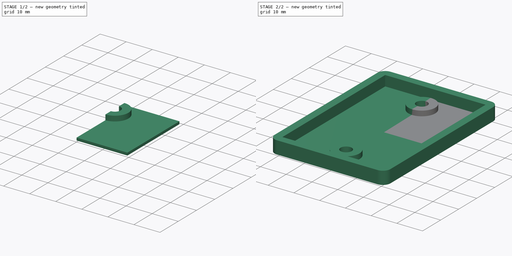
[diagram: build sequence overview — one tinted view per stage of 2, left to right]
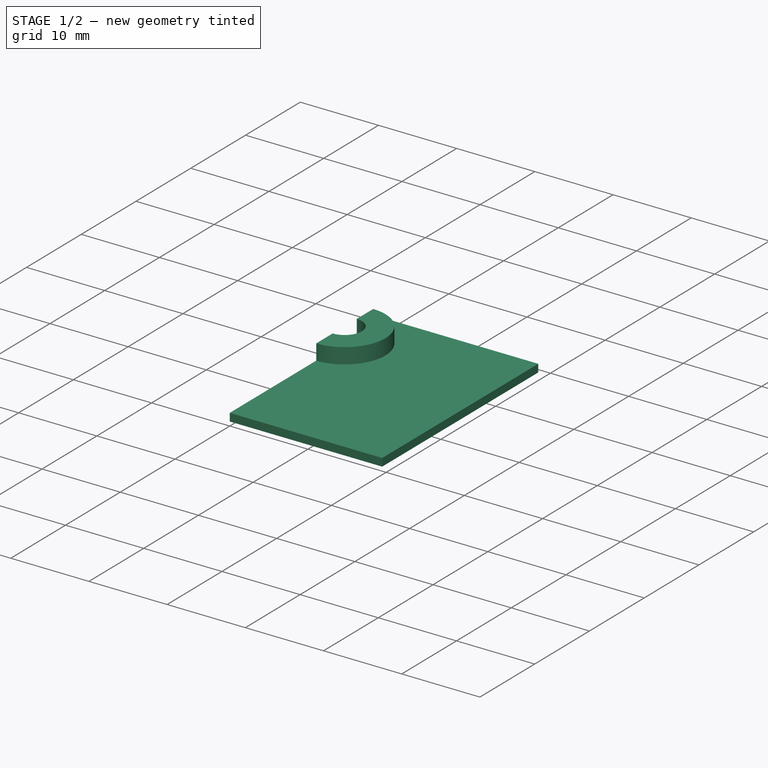
[diagram: stage 1 of 2 — iso view after this stage's code; geometry added in this stage tinted green]
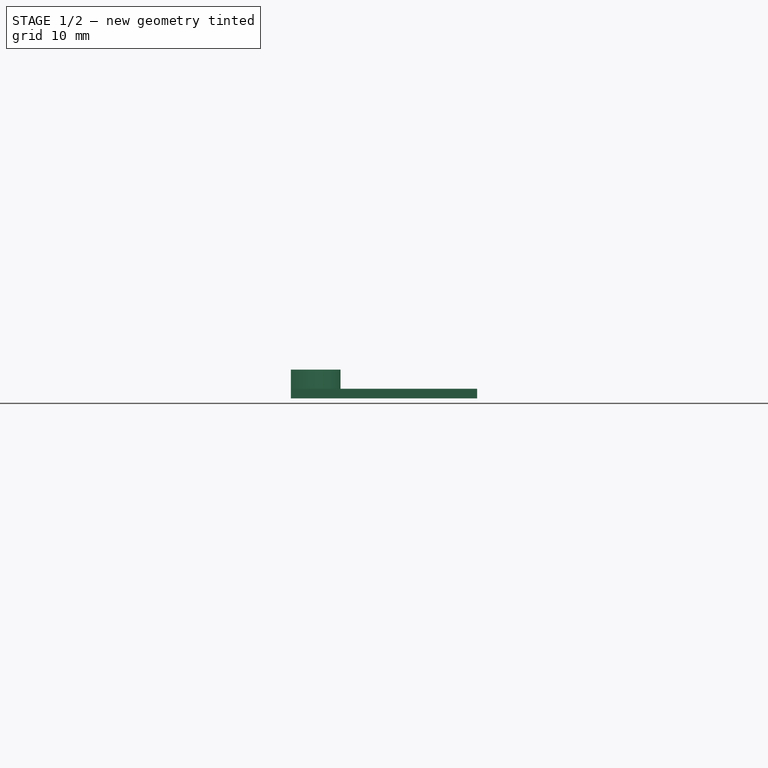
[diagram: stage 1 of 2 — front view after this stage's code; geometry added in this stage tinted green]
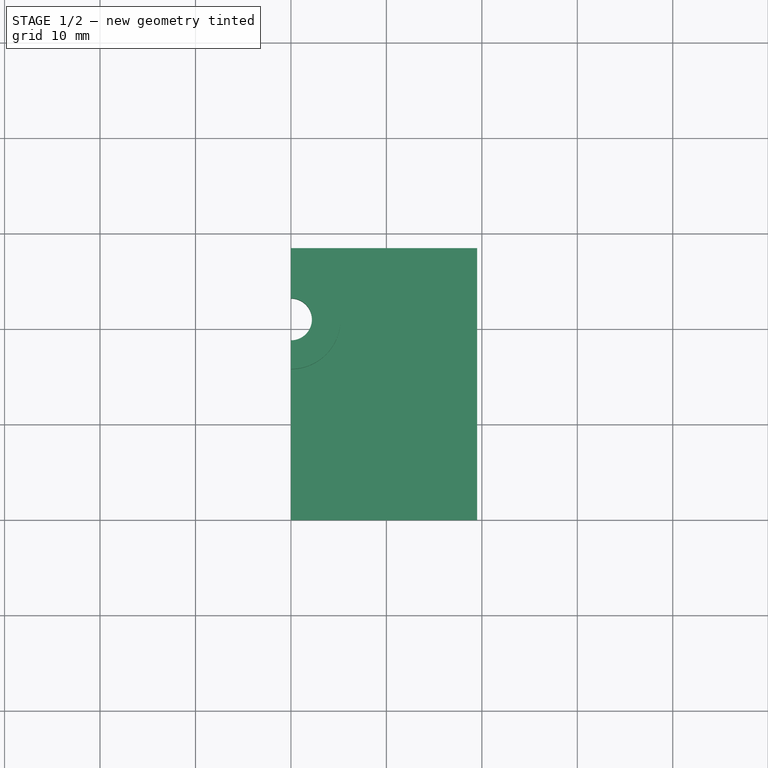
[diagram: stage 1 of 2 — top view after this stage's code; geometry added in this stage tinted green]
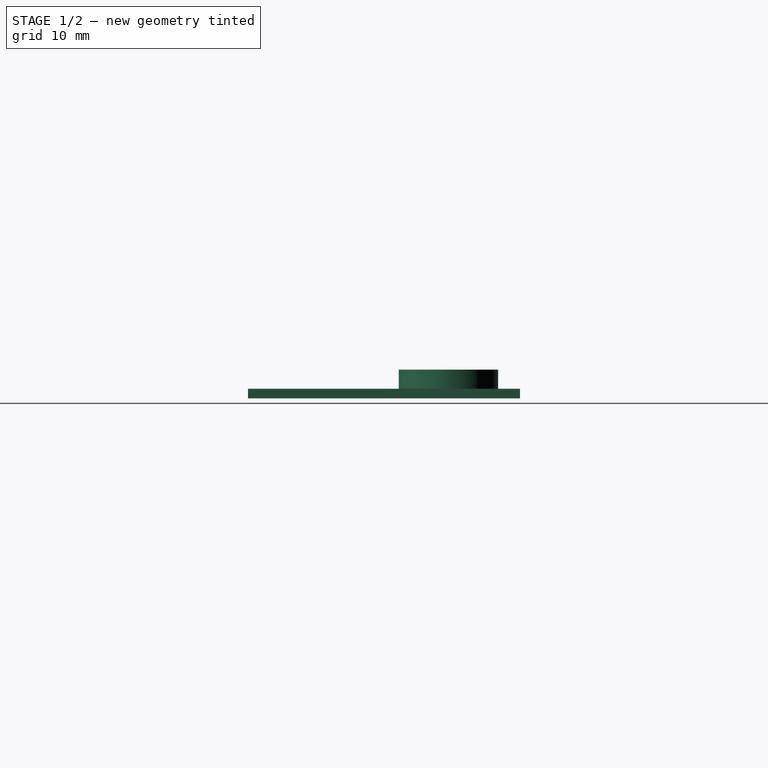
[diagram: stage 1 of 2 — right view after this stage's code; geometry added in this stage tinted green]
FCSTD DOCUMENT  (FreeCAD 0.20R29410 (Git))
Label: NanoTerminalAdapter
License: All rights reserved
LicenseURL: http://en.wikipedia.org/wiki/All_rights_reserved
objects: Sketcher::SketchObject×3, PartDesign::Pad×3, PartDesign::Mirrored×2, PartDesign::MultiTransform×1, PartDesign::Body×1
note: 13 computed .brp shape members not serialized (recipe doc carries the construction recipe); baked Part::Feature solids carry a one-line shape summary decoded from their .brp

FEATURE [Sketcher::SketchObject] Sketch
  FullyConstrained = true
  MapMode = 5
  Support = -> [XY_Plane]
  sketch-geometry (6):
    g0: LineSegment StartX=7e-16 StartY=0 StartZ=0 EndX=19.5 EndY=0 EndZ=0
    g1: LineSegment StartX=19.5 StartY=0 StartZ=0 EndX=19.5 EndY=28.5 EndZ=0
    g2: LineSegment StartX=19.5 StartY=28.5 StartZ=0 EndX=0 EndY=28.5 EndZ=0
    g3: LineSegment StartX=7e-16 StartY=28.5 StartZ=0 EndX=7e-16 EndY=23.2 EndZ=0
    g4: ArcOfCircle CenterX=0 CenterY=21 CenterZ=0 NormalX=0 NormalY=0 NormalZ=1 AngleXU=0 Radius=2.2 StartAngle=4.71239 EndAngle=7.85398
    g5: LineSegment StartX=7e-16 StartY=18.8 StartZ=0 EndX=7e-16 EndY=0 EndZ=0
  constraints (18):
    c: Coincident(g0,g1)
    c: Coincident(g1,g2)
    c: Coincident(g2,g3)
    c: Coincident(g5,g0)
    c: Horizontal(g0)
    c: Horizontal(g2)
    c: Vertical(g1)
    c: Vertical(g3)
    c: Coincident(g0,g-1)
    c: DistanceY(g2) = 28.5
    c: DistanceX(g0) = 19.5
    c: PointOnObject(g4,g3)
    c: Coincident(g3,g4)
    c: Coincident(g5,g4)
    c: DistanceY(g4) = 21
    c: Diameter(g4) = 4.4
    c: Vertical(g3,g4)
    c: Vertical(g5)
FEATURE [PartDesign::Pad] Pad
  Direction = (0,0,1)
  Length = 1
  Length2 = 10
  Profile = -> Sketch
  ReferenceAxis = -> Sketch [N_Axis]
  Type = 0
FEATURE [Sketcher::SketchObject] Sketch001
  FullyConstrained = true
  MapMode = 5
  Support = -> [XY_Plane]
  expr: Constraints[10] = Sketch.Constraints[10]
  expr: Constraints[14] = Sketch.Constraints[14]
  expr: Constraints[15] = Sketch.Constraints[15]
  expr: Constraints[9] = Sketch.Constraints[9]
  sketch-geometry (9):
    g0: LineSegment StartX=-4e-16 StartY=0 StartZ=0 EndX=19.5 EndY=0 EndZ=0
    g1: LineSegment StartX=19.5 StartY=0 StartZ=0 EndX=19.5 EndY=28.5 EndZ=0
    g2: LineSegment StartX=19.5 StartY=28.5 StartZ=0 EndX=0 EndY=28.5 EndZ=0
    g3: LineSegment StartX=-4e-16 StartY=28.5 StartZ=0 EndX=-4e-16 EndY=23.2 EndZ=0
    g4: ArcOfCircle CenterX=0 CenterY=21 CenterZ=0 NormalX=0 NormalY=0 NormalZ=1 AngleXU=0 Radius=2.2 StartAngle=4.71239 EndAngle=7.85398
    g5: LineSegment StartX=-4e-16 StartY=18.8 StartZ=0 EndX=-4e-16 EndY=0 EndZ=0
    g6: LineSegment StartX=-4e-16 StartY=23.2 StartZ=0 EndX=-4e-16 EndY=26.2 EndZ=0
    g7: LineSegment StartX=-4e-16 StartY=18.8 StartZ=0 EndX=-4e-16 EndY=15.8 EndZ=0
    g8: ArcOfCircle CenterX=0 CenterY=21 CenterZ=0 NormalX=0 NormalY=0 NormalZ=1 AngleXU=0 Radius=5.2 StartAngle=4.71239 EndAngle=7.85398
  constraints (26):
    c: Coincident(g0,g1)
    c: Coincident(g1,g2)
    c: Coincident(g2,g3)
    c: Coincident(g5,g0)
    c: Horizontal(g0)
    c: Horizontal(g2)
    c: Vertical(g1)
    c: Vertical(g3)
    c: Coincident(g0,g-1)
    c: DistanceY(g2) = 28.5
    c: DistanceX(g0) = 19.5
    c: PointOnObject(g4,g3)
    c: Coincident(g3,g4)
    c: Coincident(g5,g4)
    c: DistanceY(g4) = 21
    c: Diameter(g4) = 4.4
    c: Vertical(g3,g4)
    c: Vertical(g5)
    c: Coincident(g6,g4)
    c: Coincident(g7,g4)
    c: Distance(g6) = 3
    c: Coincident(g8,g4)
    c: Coincident(g8,g6)
    c: Coincident(g8,g7)
    c: Vertical(g6)
    c: Vertical(g7)
FEATURE [PartDesign::Pad] Pad001
  BaseFeature = -> Pad
  Direction = (0,0,1)
  Length = 3
  Length2 = 10
  Profile = -> Sketch001
  ReferenceAxis = -> Sketch001 [N_Axis]
  Type = 0
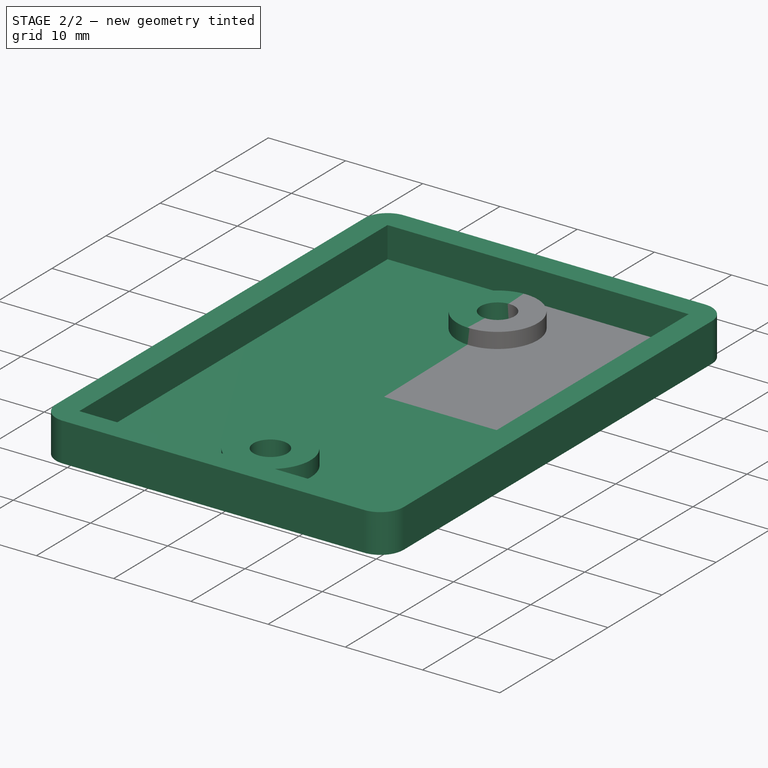
[diagram: stage 2 of 2 — iso view after this stage's code; geometry added in this stage tinted green]
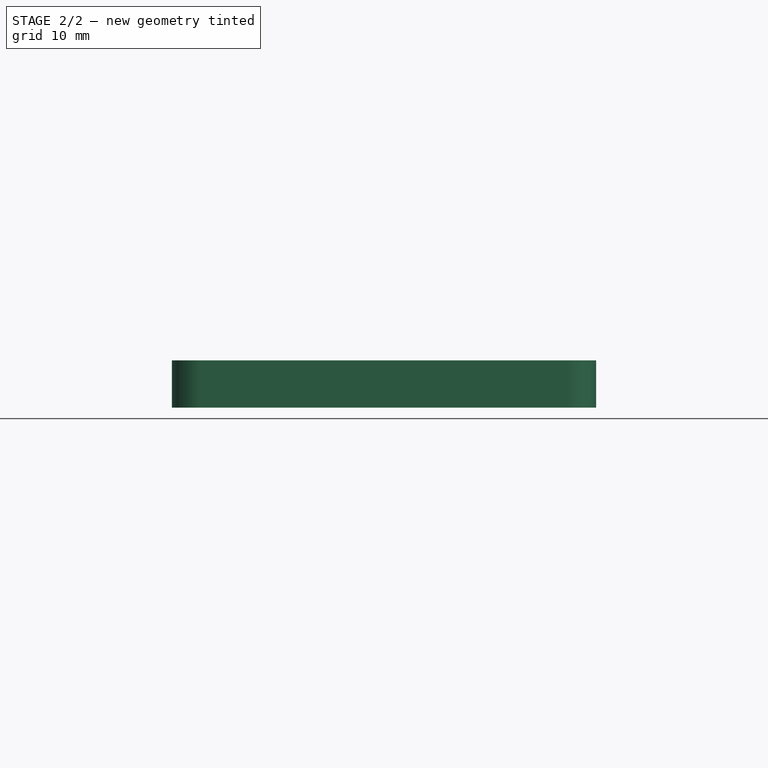
[diagram: stage 2 of 2 — front view after this stage's code; geometry added in this stage tinted green]
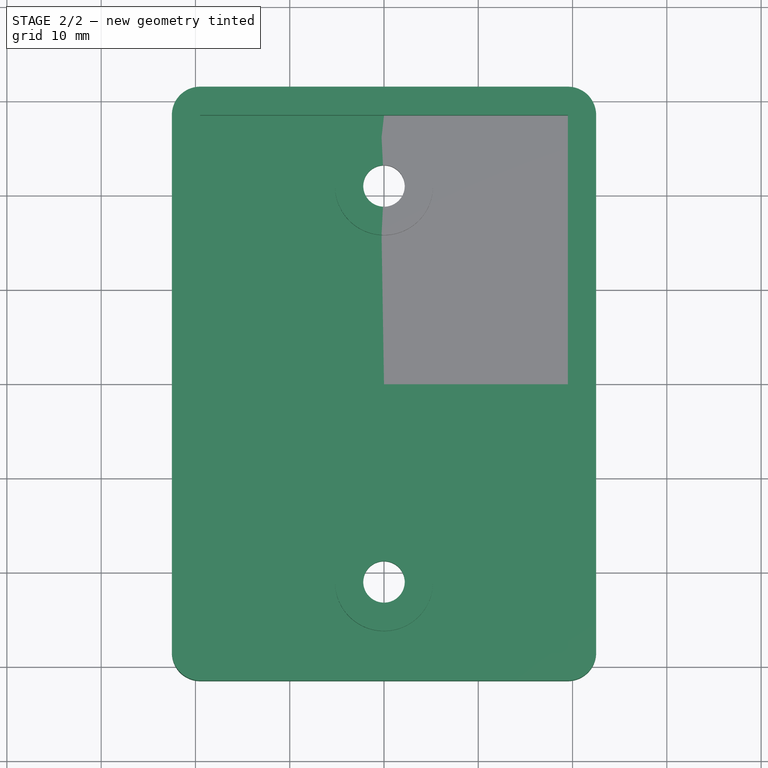
[diagram: stage 2 of 2 — top view after this stage's code; geometry added in this stage tinted green]
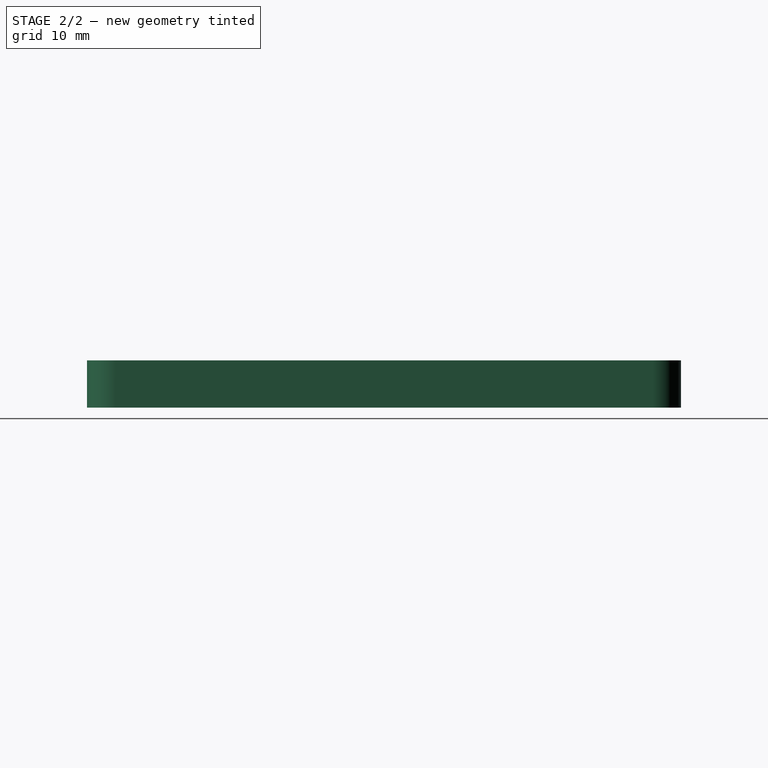
[diagram: stage 2 of 2 — right view after this stage's code; geometry added in this stage tinted green]
FEATURE [Sketcher::SketchObject] Sketch002
  FullyConstrained = true
  MapMode = 5
  Support = -> [XY_Plane]
  expr: Constraints[10] = Sketch.Constraints[10]
  expr: Constraints[14] = Sketch.Constraints[14]
  expr: Constraints[15] = Sketch.Constraints[15]
  expr: Constraints[9] = Sketch.Constraints[9]
  sketch-geometry (11):
    g0: LineSegment StartX=0 StartY=0 StartZ=0 EndX=19.5 EndY=0 EndZ=0
    g1: LineSegment StartX=19.5 StartY=0 StartZ=0 EndX=19.5 EndY=28.5 EndZ=0
    g2: LineSegment StartX=19.5 StartY=28.5 StartZ=0 EndX=0 EndY=28.5 EndZ=0
    g3: LineSegment StartX=0 StartY=28.5 StartZ=0 EndX=0 EndY=23.2 EndZ=0
    g4: ArcOfCircle CenterX=0 CenterY=21 CenterZ=0 NormalX=0 NormalY=0 NormalZ=1 AngleXU=0 Radius=2.2 StartAngle=4.71239 EndAngle=7.85398
    g5: LineSegment StartX=0 StartY=18.8 StartZ=0 EndX=0 EndY=0 EndZ=0
    g6: ArcOfCircle CenterX=19.5 CenterY=28.5 CenterZ=0 NormalX=0 NormalY=0 NormalZ=1 AngleXU=0 Radius=3 StartAngle=2e-16 EndAngle=1.5708
    g7: LineSegment StartX=0 StartY=28.5 StartZ=0 EndX=0 EndY=31.5 EndZ=0
    g8: LineSegment StartX=0 StartY=31.5 StartZ=0 EndX=19.5 EndY=31.5 EndZ=0
    g9: LineSegment StartX=19.5 StartY=0 StartZ=0 EndX=22.5 EndY=0 EndZ=0
    g10: LineSegment StartX=22.5 StartY=0 StartZ=0 EndX=22.5 EndY=28.5 EndZ=0
  constraints (30):
    c: Coincident(g0,g1)
    c: Coincident(g1,g2)
    c: Coincident(g2,g3)
    c: Coincident(g5,g0)
    c: Horizontal(g0)
    c: Horizontal(g2)
    c: Vertical(g1)
    c: Vertical(g3)
    c: Coincident(g0,g-1)
    c: DistanceY(g2) = 28.5
    c: DistanceX(g0) = 19.5
    c: PointOnObject(g4,g3)
    c: Coincident(g3,g4)
    c: Coincident(g5,g4)
    c: DistanceY(g4) = 21
    c: Diameter(g4) = 4.4
    c: Vertical(g3,g4)
    c: Vertical(g5)
    c: Coincident(g6,g1)
    c: Coincident(g7,g2)
    c: PointOnObject(g7,g-2)
    c: Coincident(g8,g7)
    c: Horizontal(g8)
    c: Coincident(g9,g1)
    c: PointOnObject(g9,g-1)
    c: Coincident(g10,g9)
    c: Vertical(g10)
    c: Diameter(g6) = 6
    c: Tangent(g10,g6) = -1.5708
    c: Tangent(g8,g6) = 1.5708
FEATURE [PartDesign::Pad] Pad002
  BaseFeature = -> Pad001
  Direction = (0,0,1)
  Length = 5
  Length2 = 10
  Profile = -> Sketch002
  ReferenceAxis = -> Sketch002 [N_Axis]
  Type = 0
FEATURE [PartDesign::Mirrored] Mirrored
  MirrorPlane = -> Sketch [V_Axis]
FEATURE [PartDesign::Mirrored] Mirrored001
  MirrorPlane = -> Sketch [H_Axis]
FEATURE [PartDesign::MultiTransform] MultiTransform
  BaseFeature = -> Pad002
  Originals = -> [Pad,Pad001,Pad002]
  Transformations = -> [Mirrored,Mirrored001]
FEATURE [PartDesign::Body] Body
  Group = -> [Sketch,Pad,Sketch001,Pad001,Sketch002,Pad002,MultiTransform,Mirrored,Mirrored001]
  Origin = -> Origin
  Tip = -> MultiTransform
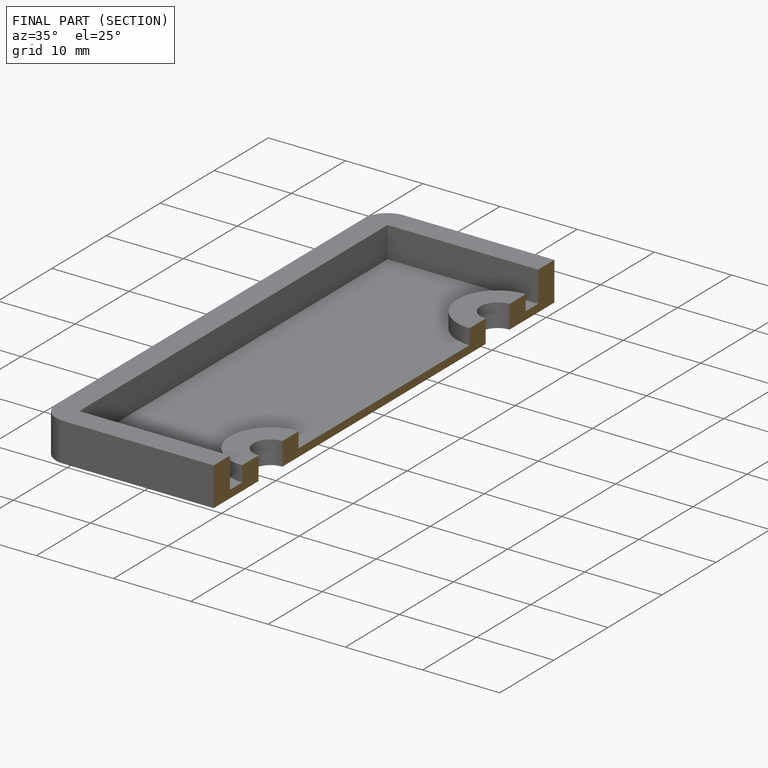
[diagram: finished part — half-section view (interior)]
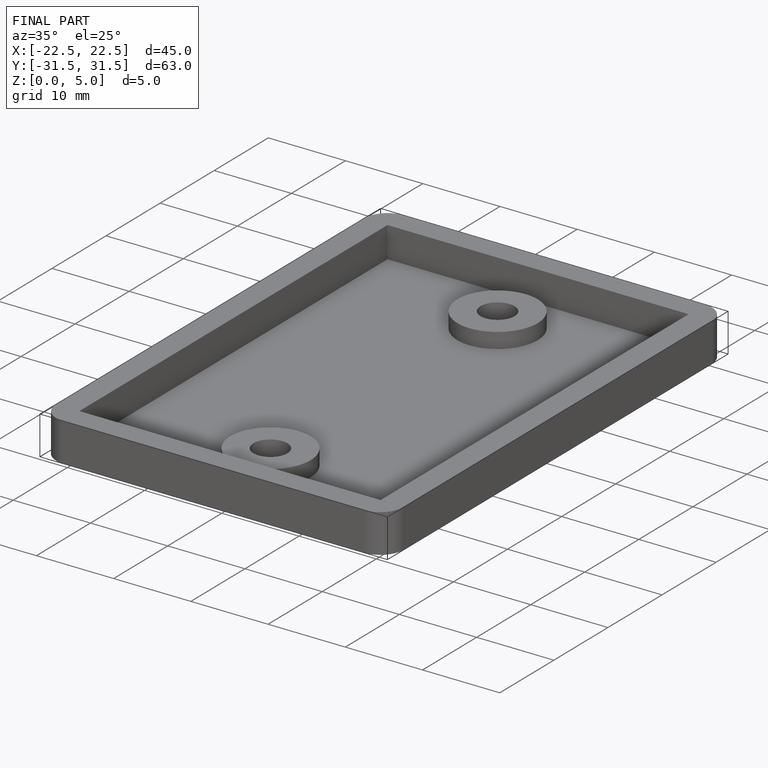
[diagram: finished part — iso view with bounding-box wireframe]
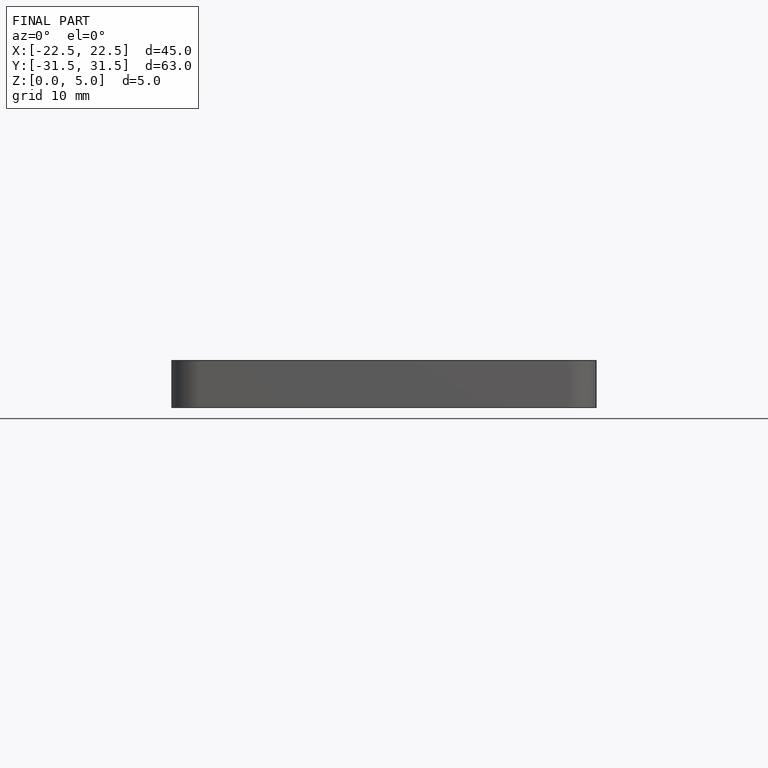
[diagram: finished part — front view with bounding-box wireframe]
